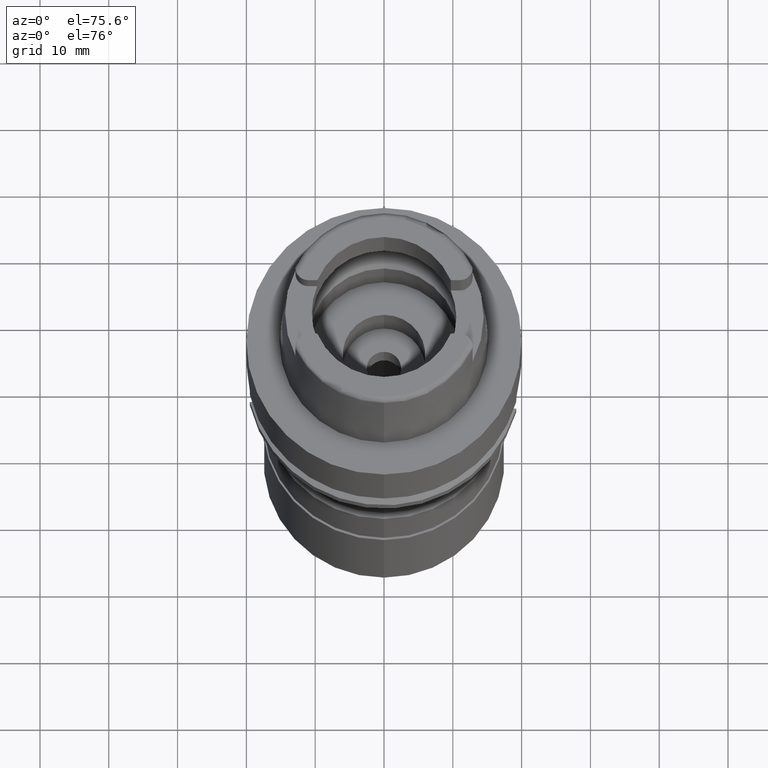
[diagram: clean part render]
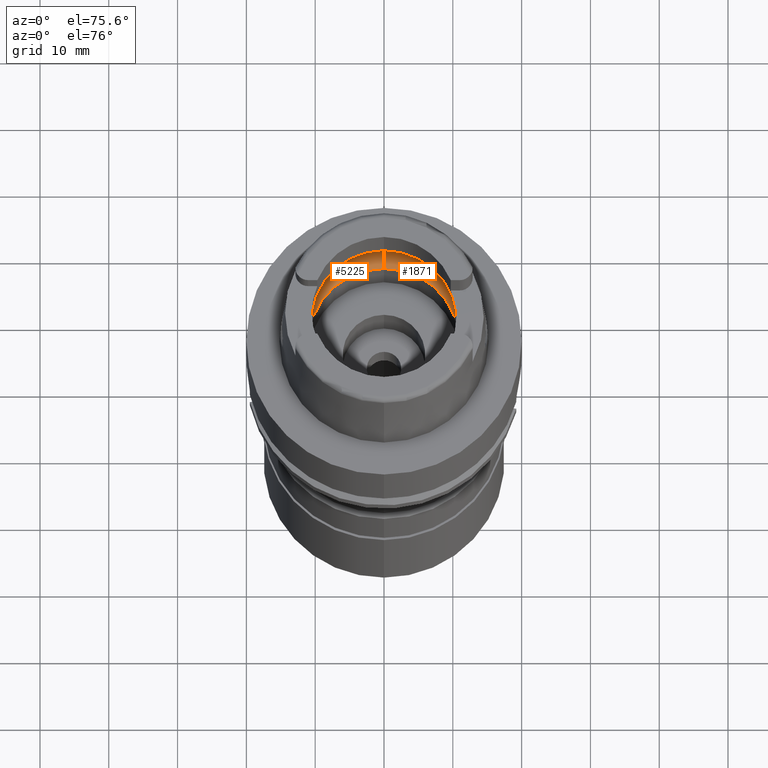
[diagram: same view with one multi-face feature highlighted, each face labeled with its STEP entity id]
A machine part, auxiliary view. The highlighted faces form ONE feature: a constant-radius fillet chain: 2 tangent blend faces with common blend radius 5 mm. The faces share edges in the B-rep.
Their STEP definitions:
[1] entity #5225 (Torus):
#109 = CARTESIAN_POINT ( 'NONE',  ( 0.0000000000000000000, 7.750000000000000000, 3.933312163512999504 ) ) ;
#132 = DIRECTION ( 'NONE',  ( 0.0000000000000000000, 0.6299999999999791322, -0.7765951326141738997 ) ) ;
#211 = B_SPLINE_CURVE_WITH_KNOTS ( 'NONE', 3,
 ( #2584, #841, #426, #1363 ),
 .UNSPECIFIED., .F., .F.,
 ( 4, 4 ),
 ( 0.0000000000000000000, 1.000000000000000000 ),
 .UNSPECIFIED. ) ;
#299 = EDGE_CURVE ( 'NONE', #2524, #3856, #4639, .T. ) ;
#330 = CIRCLE ( 'NONE', #4119, 10.90000000000000036 ) ;
#389 = CARTESIAN_POINT ( 'NONE',  ( -12.74221287095999955, 0.3492175661404000042, 3.717717495173999964 ) ) ;
#408 = CARTESIAN_POINT ( 'NONE',  ( -12.70998420979999999, -1.009356917307999923, 3.933312163512999504 ) ) ;
#409 = ORIENTED_EDGE ( 'NONE', *, *, #3853, .F. ) ;
#426 = CARTESIAN_POINT ( 'NONE',  ( -12.74455357708000136, -0.3736595957190507744, 3.699999999999999289 ) ) ;
#522 = CARTESIAN_POINT ( 'NONE',  ( 0.0000000000000000000, 1.272815980657999902E-14, 3.933312163512999504 ) ) ;
#708 = CIRCLE ( 'NONE', #3783, 5.000000000000000888 ) ;
#841 = CARTESIAN_POINT ( 'NONE',  ( -12.73303045465333305, -0.7191549055692795234, 3.791579385686877579 ) ) ;
#907 = CARTESIAN_POINT ( 'NONE',  ( 0.0000000000000000000, 12.75000000000000000, 3.933312163512999504 ) ) ;
#942 = AXIS2_PLACEMENT_3D ( 'NONE', #3214, #3629, #5008 ) ;
#1213 = AXIS2_PLACEMENT_3D ( 'NONE', #2418, #3730, #5389 ) ;
#1328 = B_SPLINE_CURVE_WITH_KNOTS ( 'NONE', 3,
 ( #2145, #4200, #389, #5079, #2520, #5053 ),
 .UNSPECIFIED., .F., .F.,
 ( 4, 1, 1, 4 ),
 ( 0.0000000000000000000, 0.3333333333333000081, 0.6666666666667000474, 1.000000000000000000 ),
 .UNSPECIFIED. ) ;
#1344 = DIRECTION ( 'NONE',  ( 1.000000000000000000, 0.0000000000000000000, 0.0000000000000000000 ) ) ;
#1363 = CARTESIAN_POINT ( 'NONE',  ( -12.74455357708000136, 0.0000000000000000000, 3.700000000000000178 ) ) ;
#1374 = DIRECTION ( 'NONE',  ( 0.0000000000000000000, 0.0000000000000000000, -1.000000000000000000 ) ) ;
#1402 = DIRECTION ( 'NONE',  ( 0.0000000000000000000, -1.000000000000000000, 0.0000000000000000000 ) ) ;
#1420 = VERTEX_POINT ( 'NONE', #3012 ) ;
#1423 = EDGE_CURVE ( 'NONE', #3145, #1420, #1328, .T. ) ;
#1452 = EDGE_LOOP ( 'NONE', ( #409, #4128, #4453, #3656, #4471, #1804, #4413 ) ) ;
#1768 = FACE_OUTER_BOUND ( 'NONE', #1452, .T. ) ;
#1804 = ORIENTED_EDGE ( 'NONE', *, *, #1423, .F. ) ;
#1839 = CARTESIAN_POINT ( 'NONE',  ( 0.0000000000000000000, -10.90000000000000036, 0.05033650044222000297 ) ) ;
#1886 = EDGE_CURVE ( 'NONE', #4312, #3453, #708, .T. ) ;
#2017 = AXIS2_PLACEMENT_3D ( 'NONE', #522, #1374, #4702 ) ;
#2026 = TOROIDAL_SURFACE ( 'NONE', #4381, 7.750000000000000000, 5.000000000000000000 ) ;
#2145 = CARTESIAN_POINT ( 'NONE',  ( -12.74455357708000136, 0.0000000000000000000, 3.700000000000000178 ) ) ;
#2295 = DIRECTION ( 'NONE',  ( 0.0000000000000000000, 0.0000000000000000000, 1.000000000000000000 ) ) ;
#2370 = EDGE_CURVE ( 'NONE', #5173, #3145, #211, .T. ) ;
#2418 = CARTESIAN_POINT ( 'NONE',  ( 0.0000000000000000000, -7.750000000000000000, 3.933312163512999504 ) ) ;
#2520 = CARTESIAN_POINT ( 'NONE',  ( -12.71822638592999866, 0.9055701133754999743, 3.882623362512000131 ) ) ;
#2524 = VERTEX_POINT ( 'NONE', #1839 ) ;
#2584 = CARTESIAN_POINT ( 'NONE',  ( -12.70998420979999999, -1.009356917307999923, 3.933312163512999504 ) ) ;
#3012 = CARTESIAN_POINT ( 'NONE',  ( -12.70998420979999999, 1.009356917307999923, 3.933312163512999504 ) ) ;
#3069 = CARTESIAN_POINT ( 'NONE',  ( -12.74455357708000136, 0.0000000000000000000, 3.700000000000000178 ) ) ;
#3145 = VERTEX_POINT ( 'NONE', #3069 ) ;
#3214 = CARTESIAN_POINT ( 'NONE',  ( 0.0000000000000000000, 1.272815980657999902E-14, 3.933312163512999504 ) ) ;
#3406 = CARTESIAN_POINT ( 'NONE',  ( 0.0000000000000000000, -12.75000000000000000, 3.933312163512999504 ) ) ;
#3422 = CARTESIAN_POINT ( 'NONE',  ( 0.0000000000000000000, 10.90000000000000036, 0.05033650044222000297 ) ) ;
#3453 = VERTEX_POINT ( 'NONE', #907 ) ;
#3463 = EDGE_CURVE ( 'NONE', #4312, #2524, #330, .T. ) ;
#3484 = DIRECTION ( 'NONE',  ( 0.0000000000000000000, 0.0000000000000000000, -1.000000000000000000 ) ) ;
#3493 = CIRCLE ( 'NONE', #942, 12.75000000000000533 ) ;
#3629 = DIRECTION ( 'NONE',  ( 0.0000000000000000000, 0.0000000000000000000, -1.000000000000000000 ) ) ;
#3656 = ORIENTED_EDGE ( 'NONE', *, *, #1886, .T. ) ;
#3730 = DIRECTION ( 'NONE',  ( -1.000000000000000000, 0.0000000000000000000, 0.0000000000000000000 ) ) ;
#3783 = AXIS2_PLACEMENT_3D ( 'NONE', #109, #1344, #132 ) ;
#3853 = EDGE_CURVE ( 'NONE', #3856, #5173, #4371, .T. ) ;
#3856 = VERTEX_POINT ( 'NONE', #3406 ) ;
#3972 = DIRECTION ( 'NONE',  ( 0.0000000000000000000, 1.000000000000000000, 0.0000000000000000000 ) ) ;
#4119 = AXIS2_PLACEMENT_3D ( 'NONE', #5107, #2295, #3972 ) ;
#4128 = ORIENTED_EDGE ( 'NONE', *, *, #299, .F. ) ;
#4141 = EDGE_CURVE ( 'NONE', #1420, #3453, #3493, .T. ) ;
#4200 = CARTESIAN_POINT ( 'NONE',  ( -12.74455357708000136, 0.1164895558040000140, 3.700000000000000178 ) ) ;
#4312 = VERTEX_POINT ( 'NONE', #3422 ) ;
#4371 = CIRCLE ( 'NONE', #2017, 12.75000000000000000 ) ;
#4381 = AXIS2_PLACEMENT_3D ( 'NONE', #5177, #3484, #1402 ) ;
#4413 = ORIENTED_EDGE ( 'NONE', *, *, #2370, .F. ) ;
#4453 = ORIENTED_EDGE ( 'NONE', *, *, #3463, .F. ) ;
#4471 = ORIENTED_EDGE ( 'NONE', *, *, #4141, .F. ) ;
#4639 = CIRCLE ( 'NONE', #1213, 5.000000000000000888 ) ;
#4702 = DIRECTION ( 'NONE',  ( 0.0000000000000000000, -1.000000000000000000, 0.0000000000000000000 ) ) ;
#5008 = DIRECTION ( 'NONE',  ( -0.9968615066513395462, 0.07916524841634305087, 0.0000000000000000000 ) ) ;
#5053 = CARTESIAN_POINT ( 'NONE',  ( -12.70998420979999999, 1.009356917307999923, 3.933312163512999504 ) ) ;
#5079 = CARTESIAN_POINT ( 'NONE',  ( -12.73125791500999959, 0.6899488223915999363, 3.796703560592000315 ) ) ;
#5107 = CARTESIAN_POINT ( 'NONE',  ( 0.0000000000000000000, 1.272815980657999902E-14, 0.05033650044222000297 ) ) ;
#5173 = VERTEX_POINT ( 'NONE', #408 ) ;
#5177 = CARTESIAN_POINT ( 'NONE',  ( 0.0000000000000000000, 1.272815980657999902E-14, 3.933312163512999504 ) ) ;
#5225 = ADVANCED_FACE ( 'NONE', ( #1768 ), #2026, .F. ) ;
#5389 = DIRECTION ( 'NONE',  ( 0.0000000000000000000, -0.6299999999999791322, -0.7765951326141738997 ) ) ;
[2] entity #1871 (Torus):
#101 = DIRECTION ( 'NONE',  ( 0.0000000000000000000, 0.0000000000000000000, -1.000000000000000000 ) ) ;
#109 = CARTESIAN_POINT ( 'NONE',  ( 0.0000000000000000000, 7.750000000000000000, 3.933312163512999504 ) ) ;
#132 = DIRECTION ( 'NONE',  ( 0.0000000000000000000, 0.6299999999999791322, -0.7765951326141738997 ) ) ;
#149 = CARTESIAN_POINT ( 'NONE',  ( 12.74455357708000136, 0.1164891689111999945, 3.700000000000000178 ) ) ;
#299 = EDGE_CURVE ( 'NONE', #2524, #3856, #4639, .T. ) ;
#582 = DIRECTION ( 'NONE',  ( 0.0000000000000000000, 0.0000000000000000000, 1.000000000000000000 ) ) ;
#708 = CIRCLE ( 'NONE', #3783, 5.000000000000000888 ) ;
#809 = B_SPLINE_CURVE_WITH_KNOTS ( 'NONE', 3,
 ( #1868, #4775, #3071, #4334, #149, #5219 ),
 .UNSPECIFIED., .F., .F.,
 ( 4, 1, 1, 4 ),
 ( 0.0000000000000000000, 0.3333333333333000081, 0.6666666666667000474, 1.000000000000000000 ),
 .UNSPECIFIED. ) ;
#860 = CIRCLE ( 'NONE', #4638, 12.75000000000000533 ) ;
#907 = CARTESIAN_POINT ( 'NONE',  ( 0.0000000000000000000, 12.75000000000000000, 3.933312163512999504 ) ) ;
#913 = CARTESIAN_POINT ( 'NONE',  ( 12.70998420979999999, -1.009356917307999923, 3.933312163512999504 ) ) ;
#963 = AXIS2_PLACEMENT_3D ( 'NONE', #3000, #3882, #1316 ) ;
#967 = CARTESIAN_POINT ( 'NONE',  ( 12.70998420979999999, -1.009356917307999923, 3.933312163512999504 ) ) ;
#973 = DIRECTION ( 'NONE',  ( 0.0000000000000000000, 0.0000000000000000000, -1.000000000000000000 ) ) ;
#1034 = EDGE_CURVE ( 'NONE', #4512, #1397, #809, .T. ) ;
#1092 = ORIENTED_EDGE ( 'NONE', *, *, #1034, .F. ) ;
#1213 = AXIS2_PLACEMENT_3D ( 'NONE', #2418, #3730, #5389 ) ;
#1303 = CIRCLE ( 'NONE', #5182, 10.90000000000000036 ) ;
#1316 = DIRECTION ( 'NONE',  ( 0.0000000000000000000, -1.000000000000000000, 0.0000000000000000000 ) ) ;
#1341 = ORIENTED_EDGE ( 'NONE', *, *, #299, .T. ) ;
#1344 = DIRECTION ( 'NONE',  ( 1.000000000000000000, 0.0000000000000000000, 0.0000000000000000000 ) ) ;
#1397 = VERTEX_POINT ( 'NONE', #4602 ) ;
#1602 = EDGE_CURVE ( 'NONE', #1397, #2952, #2321, .T. ) ;
#1839 = CARTESIAN_POINT ( 'NONE',  ( 0.0000000000000000000, -10.90000000000000036, 0.05033650044222000297 ) ) ;
#1868 = CARTESIAN_POINT ( 'NONE',  ( 12.70998420979999999, 1.009356917307000057, 3.933312163512999504 ) ) ;
#1871 = ADVANCED_FACE ( 'NONE', ( #4166 ), #3963, .F. ) ;
#1886 = EDGE_CURVE ( 'NONE', #4312, #3453, #708, .T. ) ;
#1956 = ORIENTED_EDGE ( 'NONE', *, *, #1886, .F. ) ;
#2296 = CARTESIAN_POINT ( 'NONE',  ( 12.73303045465333661, -0.7191549055351926789, 3.791579385670230007 ) ) ;
#2321 = B_SPLINE_CURVE_WITH_KNOTS ( 'NONE', 3,
 ( #3867, #3551, #2296, #967 ),
 .UNSPECIFIED., .F., .F.,
 ( 4, 4 ),
 ( 0.0000000000000000000, 1.000000000000000000 ),
 .UNSPECIFIED. ) ;
#2418 = CARTESIAN_POINT ( 'NONE',  ( 0.0000000000000000000, -7.750000000000000000, 3.933312163512999504 ) ) ;
#2524 = VERTEX_POINT ( 'NONE', #1839 ) ;
#2574 = AXIS2_PLACEMENT_3D ( 'NONE', #4830, #973, #2713 ) ;
#2611 = DIRECTION ( 'NONE',  ( 0.9968615066513395462, -0.07916524841634305087, 0.0000000000000000000 ) ) ;
#2713 = DIRECTION ( 'NONE',  ( 0.0000000000000000000, 1.000000000000000000, 0.0000000000000000000 ) ) ;
#2952 = VERTEX_POINT ( 'NONE', #913 ) ;
#2957 = CARTESIAN_POINT ( 'NONE',  ( 12.70998420979999999, 1.009356917307000057, 3.933312163512999504 ) ) ;
#2991 = CARTESIAN_POINT ( 'NONE',  ( 0.0000000000000000000, 1.272815980657999902E-14, 3.933312163512999504 ) ) ;
#3000 = CARTESIAN_POINT ( 'NONE',  ( 0.0000000000000000000, 1.272815980657999902E-14, 3.933312163512999504 ) ) ;
#3071 = CARTESIAN_POINT ( 'NONE',  ( 12.73125798179000157, 0.6899473689442000568, 3.796703095513000115 ) ) ;
#3196 = EDGE_CURVE ( 'NONE', #3453, #4512, #5387, .T. ) ;
#3406 = CARTESIAN_POINT ( 'NONE',  ( 0.0000000000000000000, -12.75000000000000000, 3.933312163512999504 ) ) ;
#3422 = CARTESIAN_POINT ( 'NONE',  ( 0.0000000000000000000, 10.90000000000000036, 0.05033650044222000297 ) ) ;
#3453 = VERTEX_POINT ( 'NONE', #907 ) ;
#3471 = CARTESIAN_POINT ( 'NONE',  ( 0.0000000000000000000, 1.272815980657999902E-14, 0.05033650044222000297 ) ) ;
#3551 = CARTESIAN_POINT ( 'NONE',  ( 12.74455357708000491, -0.3736595956811157304, 3.699999999999999289 ) ) ;
#3730 = DIRECTION ( 'NONE',  ( -1.000000000000000000, 0.0000000000000000000, 0.0000000000000000000 ) ) ;
#3763 = EDGE_LOOP ( 'NONE', ( #1092, #4577, #1956, #5297, #1341, #4856, #5427 ) ) ;
#3783 = AXIS2_PLACEMENT_3D ( 'NONE', #109, #1344, #132 ) ;
#3856 = VERTEX_POINT ( 'NONE', #3406 ) ;
#3867 = CARTESIAN_POINT ( 'NONE',  ( 12.74455357708000136, 0.0000000000000000000, 3.700000000000000178 ) ) ;
#3882 = DIRECTION ( 'NONE',  ( 0.0000000000000000000, 0.0000000000000000000, -1.000000000000000000 ) ) ;
#3947 = DIRECTION ( 'NONE',  ( 0.0000000000000000000, -1.000000000000000000, 0.0000000000000000000 ) ) ;
#3963 = TOROIDAL_SURFACE ( 'NONE', #963, 7.750000000000000000, 5.000000000000000000 ) ;
#4166 = FACE_OUTER_BOUND ( 'NONE', #3763, .T. ) ;
#4305 = EDGE_CURVE ( 'NONE', #2952, #3856, #860, .T. ) ;
#4312 = VERTEX_POINT ( 'NONE', #3422 ) ;
#4334 = CARTESIAN_POINT ( 'NONE',  ( 12.74221288326999968, 0.3492166548812000171, 3.717717399743999618 ) ) ;
#4512 = VERTEX_POINT ( 'NONE', #2957 ) ;
#4577 = ORIENTED_EDGE ( 'NONE', *, *, #3196, .F. ) ;
#4602 = CARTESIAN_POINT ( 'NONE',  ( 12.74455357708000136, 0.0000000000000000000, 3.700000000000000178 ) ) ;
#4638 = AXIS2_PLACEMENT_3D ( 'NONE', #2991, #101, #2611 ) ;
#4639 = CIRCLE ( 'NONE', #1213, 5.000000000000000888 ) ;
#4677 = EDGE_CURVE ( 'NONE', #2524, #4312, #1303, .T. ) ;
#4775 = CARTESIAN_POINT ( 'NONE',  ( 12.71822643253000074, 0.9055695265645999914, 3.882623075918000044 ) ) ;
#4830 = CARTESIAN_POINT ( 'NONE',  ( 0.0000000000000000000, 1.272815980657999902E-14, 3.933312163512999504 ) ) ;
#4856 = ORIENTED_EDGE ( 'NONE', *, *, #4305, .F. ) ;
#5182 = AXIS2_PLACEMENT_3D ( 'NONE', #3471, #582, #3947 ) ;
#5219 = CARTESIAN_POINT ( 'NONE',  ( 12.74455357708000136, 0.0000000000000000000, 3.700000000000000178 ) ) ;
#5297 = ORIENTED_EDGE ( 'NONE', *, *, #4677, .F. ) ;
#5387 = CIRCLE ( 'NONE', #2574, 12.75000000000000000 ) ;
#5389 = DIRECTION ( 'NONE',  ( 0.0000000000000000000, -0.6299999999999791322, -0.7765951326141738997 ) ) ;
#5427 = ORIENTED_EDGE ( 'NONE', *, *, #1602, .F. ) ;